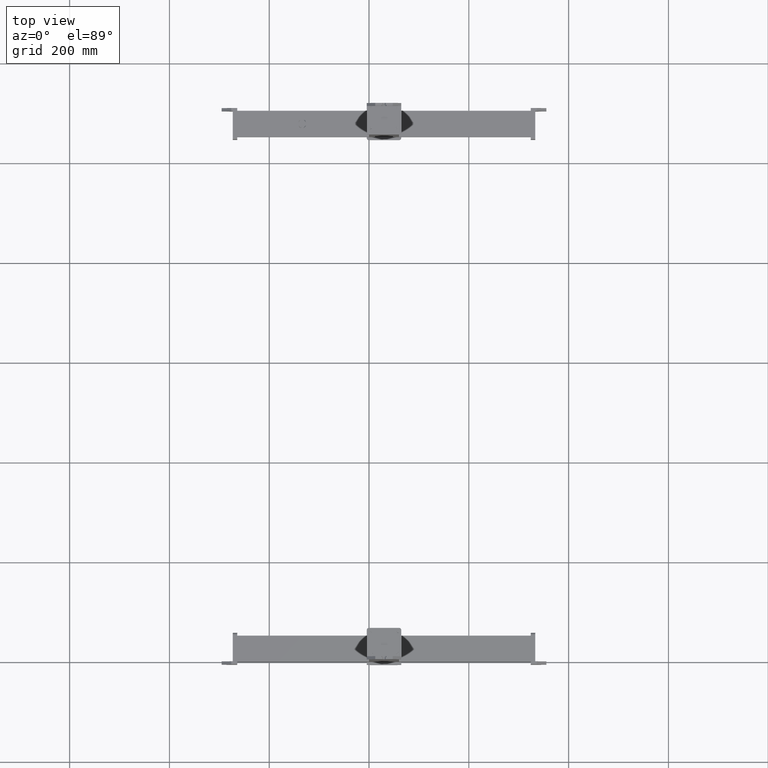
[diagram: clean part render]
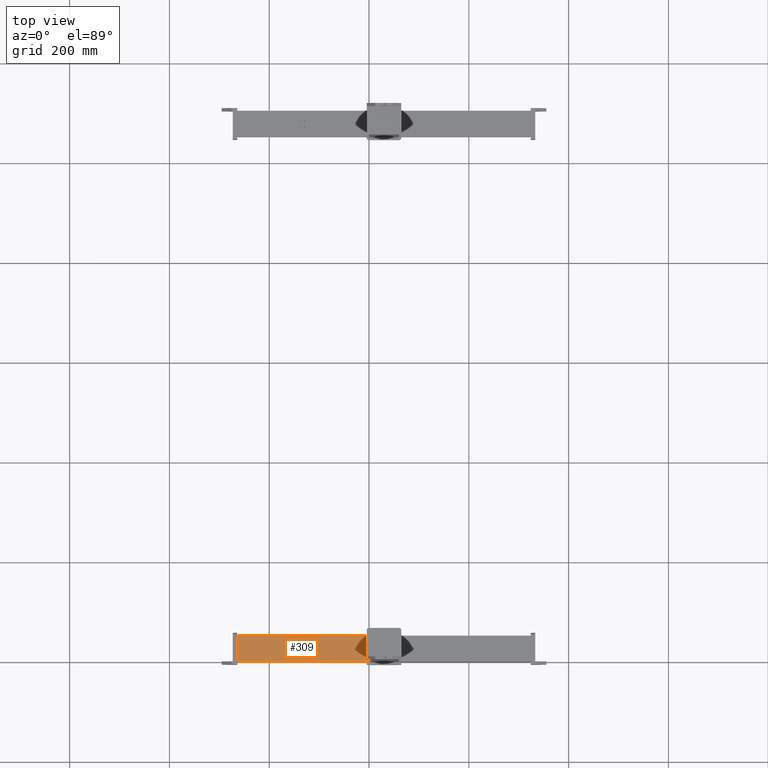
[diagram: same view with one face highlighted and labeled with its STEP entity id]
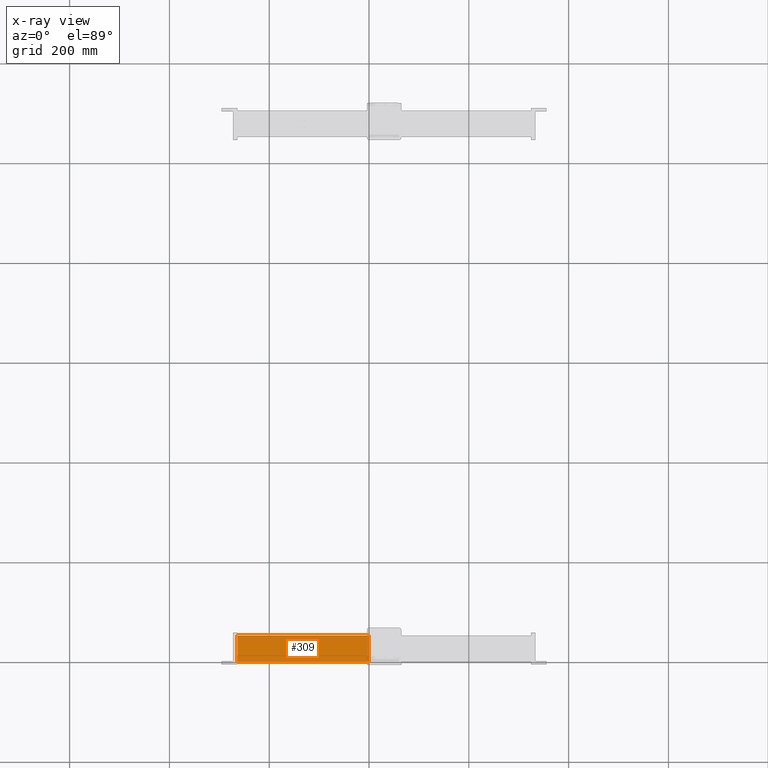
[diagram: x-ray of the same camera — body ghosted, the highlighted face saturated]
A machine part, top view. The second image highlights one B-rep face of the part: STEP entity #309.
The next image is the same camera in x-ray: the body ghosted, the highlighted face saturated — about 1% of this face is hidden behind the body in this view.
In plain terms, the highlighted planar face has unit normal (0, 0, 1).
Its self-contained STEP definition (entity closure, byte-faithful):
#72=CARTESIAN_POINT('Line Origine',(0.,0.,132.)) ;
#76=CARTESIAN_POINT('Vertex',(0.,0.,0.)) ;
#78=CARTESIAN_POINT('Vertex',(0.,0.,264.)) ;
#266=CARTESIAN_POINT('Vertex',(3.5527136788E-015,52.,0.)) ;
#269=CARTESIAN_POINT('Line Origine',(7.1054273576E-015,52.,132.)) ;
#273=CARTESIAN_POINT('Vertex',(3.5527136788E-015,52.,264.)) ;
#288=CARTESIAN_POINT('Axis2P3D Location',(0.,52.,0.)) ;
#293=CARTESIAN_POINT('Line Origine',(0.,26.,0.)) ;
#298=CARTESIAN_POINT('Line Origine',(0.,26.,264.)) ;
#73=DIRECTION('Vector Direction',(0.,0.,1.)) ;
#270=DIRECTION('Vector Direction',(0.,0.,1.)) ;
#289=DIRECTION('Axis2P3D Direction',(-1.,0.,0.)) ;
#290=DIRECTION('Axis2P3D XDirection',(0.,-1.,0.)) ;
#294=DIRECTION('Vector Direction',(0.,-1.,0.)) ;
#299=DIRECTION('Vector Direction',(0.,-1.,0.)) ;
#291=AXIS2_PLACEMENT_3D('Plane Axis2P3D',#288,#289,#290) ;
#304=ORIENTED_EDGE('',*,*,#275,.F.) ;
#305=ORIENTED_EDGE('',*,*,#297,.T.) ;
#306=ORIENTED_EDGE('',*,*,#80,.T.) ;
#307=ORIENTED_EDGE('',*,*,#302,.F.) ;
#74=VECTOR('Line Direction',#73,1.) ;
#271=VECTOR('Line Direction',#270,1.) ;
#295=VECTOR('Line Direction',#294,1.) ;
#300=VECTOR('Line Direction',#299,1.) ;
#309=ADVANCED_FACE('PartBody',(#308),#292,.T.) ;
#80=EDGE_CURVE('',#77,#79,#75,.T.) ;
#275=EDGE_CURVE('',#267,#274,#272,.T.) ;
#297=EDGE_CURVE('',#267,#77,#296,.T.) ;
#302=EDGE_CURVE('',#274,#79,#301,.T.) ;
#303=EDGE_LOOP('',(#304,#305,#306,#307)) ;
#308=FACE_OUTER_BOUND('',#303,.T.) ;
#75=LINE('Line',#72,#74) ;
#272=LINE('Line',#269,#271) ;
#296=LINE('Line',#293,#295) ;
#301=LINE('Line',#298,#300) ;
#292=PLANE('Plane',#291) ;
#77=VERTEX_POINT('',#76) ;
#79=VERTEX_POINT('',#78) ;
#267=VERTEX_POINT('',#266) ;
#274=VERTEX_POINT('',#273) ;